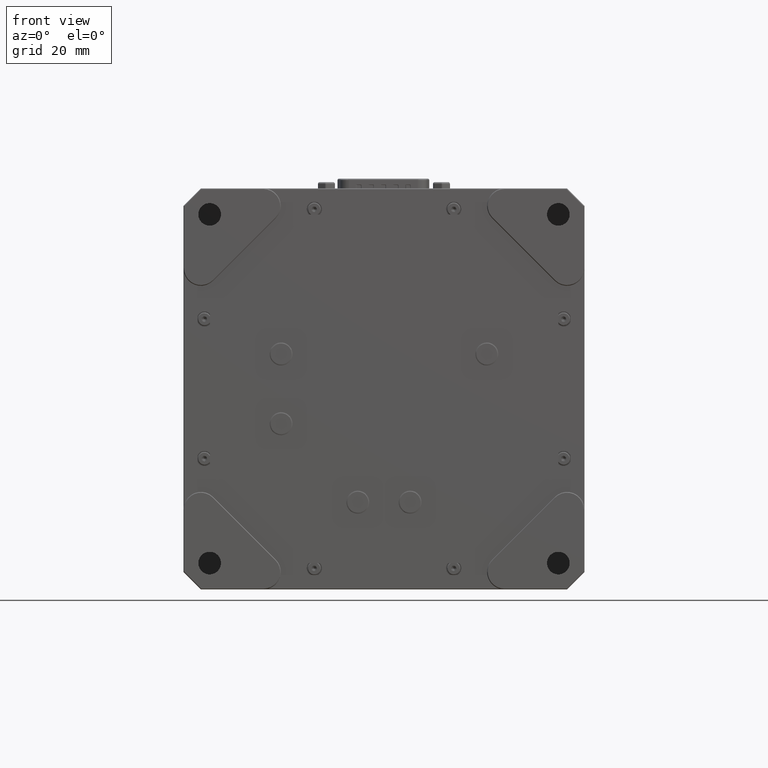
[diagram: clean part render]
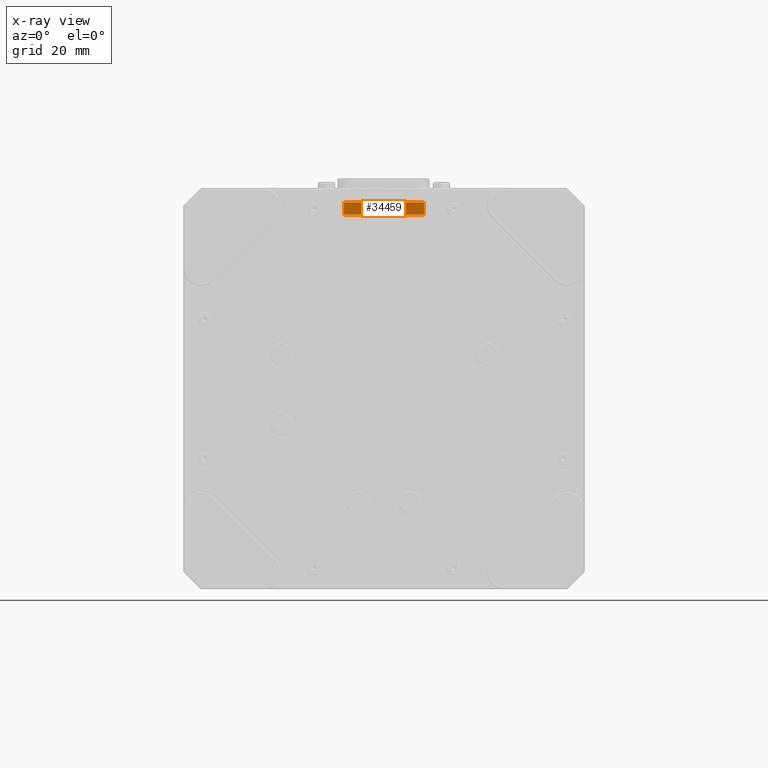
[diagram: x-ray — body ghosted, one internal face saturated and labeled with its STEP entity id]
A machine part, front view, then the same camera in x-ray: the body is ghosted and one INTERNAL B-rep face — a face not visible from any outside direction — is saturated and labeled: STEP entity #34459.
In plain terms, the highlighted planar face has unit normal (0, -1, 0).
Its self-contained STEP definition (entity closure, byte-faithful):
#2359 = EDGE_CURVE ( 'NONE', #11295, #29450, #44100, .T. ) ;
#3860 = VERTEX_POINT ( 'NONE', #40209 ) ;
#4152 = CARTESIAN_POINT ( 'NONE',  ( -20.84356474556825134, 20.00000000000000000, -0.01603640313937215039 ) ) ;
#4837 = EDGE_CURVE ( 'NONE', #11295, #11322, #31520, .T. ) ;
#7411 = EDGE_CURVE ( 'NONE', #49219, #26989, #22803, .T. ) ;
#8711 = CARTESIAN_POINT ( 'NONE',  ( -42.47150464001565240, 20.00000000000000000, -3.500000000000144773 ) ) ;
#9530 = VECTOR ( 'NONE', #23880, 1000.000000000000000 ) ;
#9692 = PLANE ( 'NONE',  #19792 ) ;
#10802 = CARTESIAN_POINT ( 'NONE',  ( -19.47150464001559911, 20.00000000000000000, -10.00000000000000000 ) ) ;
#11207 = EDGE_CURVE ( 'NONE', #30489, #3860, #22545, .T. ) ;
#11295 = VERTEX_POINT ( 'NONE', #29956 ) ;
#11322 = VERTEX_POINT ( 'NONE', #8711 ) ;
#12579 = CARTESIAN_POINT ( 'NONE',  ( -20.35735581590648380, 20.00000000000001421, -0.005345467727180253092 ) ) ;
#12912 = DIRECTION ( 'NONE',  ( 1.000000000000000000, 0.000000000000000000, -4.170576607243029879E-16 ) ) ;
#14628 = DIRECTION ( 'NONE',  ( -1.176712999434643914E-31, 2.262980913479740076E-16, 1.000000000000000000 ) ) ;
#15422 = CARTESIAN_POINT ( 'NONE',  ( -20.60046028073737290, 20.00000000000001421, -0.01069093543326973816 ) ) ;
#18121 = DIRECTION ( 'NONE',  ( 0.000000000000000000, -2.262980913479740076E-16, -1.000000000000000000 ) ) ;
#19602 = ORIENTED_EDGE ( 'NONE', *, *, #29508, .T. ) ;
#19792 = AXIS2_PLACEMENT_3D ( 'NONE', #38045, #37042, #18121 ) ;
#19930 = CARTESIAN_POINT ( 'NONE',  ( -41.41944453446304664, 20.00000000000000000, -0.01603640313937845091 ) ) ;
#19970 = CARTESIAN_POINT ( 'NONE',  ( -42.47150464001560266, 20.00000000000000000, -0.01603640313937654965 ) ) ;
#20329 = CARTESIAN_POINT ( 'NONE',  ( -39.07253958404520233, 20.00000000000000000, -6.803448068453639449E-15 ) ) ;
#21257 = CARTESIAN_POINT ( 'NONE',  ( -42.47150464001560266, 20.00000000000000000, -3.500000000000115019 ) ) ;
#21438 = EDGE_CURVE ( 'NONE', #49219, #49028, #42723, .T. ) ;
#21890 = VECTOR ( 'NONE', #12912, 1000.000000000000000 ) ;
#22545 = LINE ( 'NONE', #10802, #47392 ) ;
#22803 = LINE ( 'NONE', #19970, #40721 ) ;
#23165 = EDGE_LOOP ( 'NONE', ( #34492, #33306, #45938, #19602, #29903, #28390, #30027, #24973 ) ) ;
#23398 = VECTOR ( 'NONE', #47344, 1000.000000000000000 ) ;
#23880 = DIRECTION ( 'NONE',  ( 1.176712999434643914E-31, -2.262980913479740076E-16, -1.000000000000000000 ) ) ;
#24931 = CARTESIAN_POINT ( 'NONE',  ( -39.07253958404520233, 20.00000000690500102, -6.803448070382529791E-15 ) ) ;
#24973 = ORIENTED_EDGE ( 'NONE', *, *, #2359, .T. ) ;
#26989 = VERTEX_POINT ( 'NONE', #39043 ) ;
#28390 = ORIENTED_EDGE ( 'NONE', *, *, #39093, .F. ) ;
#28617 = FACE_OUTER_BOUND ( 'NONE', #23165, .T. ) ;
#29450 = VERTEX_POINT ( 'NONE', #44369 ) ;
#29508 = EDGE_CURVE ( 'NONE', #49028, #3860, #48452, .T. ) ;
#29903 = ORIENTED_EDGE ( 'NONE', *, *, #11207, .F. ) ;
#29956 = CARTESIAN_POINT ( 'NONE',  ( -42.47150464001560266, 20.00000000000000000, -4.966726120094590000E-15 ) ) ;
#30027 = ORIENTED_EDGE ( 'NONE', *, *, #4837, .F. ) ;
#30489 = VERTEX_POINT ( 'NONE', #45725 ) ;
#31520 = LINE ( 'NONE', #35123, #9530 ) ;
#33306 = ORIENTED_EDGE ( 'NONE', *, *, #7411, .F. ) ;
#33369 = VECTOR ( 'NONE', #40517, 1000.000000000000000 ) ;
#34459 = ADVANCED_FACE ( 'NONE', ( #28617 ), #9692, .F. ) ;
#34492 = ORIENTED_EDGE ( 'NONE', *, *, #48228, .T. ) ;
#34836 = CARTESIAN_POINT ( 'NONE',  ( -20.11425135107565154, 20.00000000552405055, -2.110116182777070080E-11 ) ) ;
#35123 = CARTESIAN_POINT ( 'NONE',  ( -42.47150464001560266, 20.00000000000000000, -10.00000000000000000 ) ) ;
#35837 = LINE ( 'NONE', #21257, #23398 ) ;
#37042 = DIRECTION ( 'NONE',  ( 5.199836164880569815E-16, -1.000000000000000000, 2.262980913479740076E-16 ) ) ;
#38045 = CARTESIAN_POINT ( 'NONE',  ( -42.47150464001560266, 20.00000000000000000, -10.00000000000000000 ) ) ;
#38390 = DIRECTION ( 'NONE',  ( -1.000000000000000000, -5.199836164880569815E-16, 0.000000000000000000 ) ) ;
#38912 = CARTESIAN_POINT ( 'NONE',  ( -20.84356474556825134, 20.00000000000000000, -0.01603640313937215039 ) ) ;
#39043 = CARTESIAN_POINT ( 'NONE',  ( -41.41944453446304664, 20.00000000000000000, -0.01603640313937845091 ) ) ;
#39093 = EDGE_CURVE ( 'NONE', #11322, #30489, #35837, .T. ) ;
#40209 = CARTESIAN_POINT ( 'NONE',  ( -19.47150464001559911, 20.00000000345249873, -1.532963867038759871E-14 ) ) ;
#40517 = DIRECTION ( 'NONE',  ( 1.000000000000000000, 0.000000000000000000, -4.170576607243029879E-16 ) ) ;
#40721 = VECTOR ( 'NONE', #38390, 1000.000000000000000 ) ;
#42723 = B_SPLINE_CURVE_WITH_KNOTS ( 'NONE', 3,
 ( #4152, #15422, #12579, #50432 ),
 .UNSPECIFIED., .F., .F.,
 ( 4, 4 ),
 ( 0.000000000000000000, 1.000000000000000000 ),
 .UNSPECIFIED. ) ;
#43733 = B_SPLINE_CURVE_WITH_KNOTS ( 'NONE', 3,
 ( #50366, #46534, #46275, #19930 ),
 .UNSPECIFIED., .F., .F.,
 ( 4, 4 ),
 ( 0.000000000000000000, 1.000000000000000000 ),
 .UNSPECIFIED. ) ;
#44100 = LINE ( 'NONE', #20329, #21890 ) ;
#44369 = CARTESIAN_POINT ( 'NONE',  ( -42.14902023246944651, 19.99999990436064934, -8.231892378611459758E-15 ) ) ;
#45725 = CARTESIAN_POINT ( 'NONE',  ( -19.47150464001559911, 20.00000000000000000, -3.500000000000115019 ) ) ;
#45938 = ORIENTED_EDGE ( 'NONE', *, *, #21438, .T. ) ;
#46275 = CARTESIAN_POINT ( 'NONE',  ( -41.66263643379850379, 20.00000000000000355, -0.01069093542624642221 ) ) ;
#46534 = CARTESIAN_POINT ( 'NONE',  ( -41.90582833313397515, 20.00000000000000355, -0.005345467713123210236 ) ) ;
#47344 = DIRECTION ( 'NONE',  ( 1.000000000000000000, 5.199836164880569815E-16, 0.000000000000000000 ) ) ;
#47392 = VECTOR ( 'NONE', #14628, 1000.000000000000000 ) ;
#48228 = EDGE_CURVE ( 'NONE', #29450, #26989, #43733, .T. ) ;
#48452 = LINE ( 'NONE', #24931, #33369 ) ;
#49028 = VERTEX_POINT ( 'NONE', #34836 ) ;
#49219 = VERTEX_POINT ( 'NONE', #38912 ) ;
#50366 = CARTESIAN_POINT ( 'NONE',  ( -42.14902023246944651, 19.99999990436064934, -8.231892378611459758E-15 ) ) ;
#50432 = CARTESIAN_POINT ( 'NONE',  ( -20.11425135107565154, 20.00000000552405055, -2.110116182777070080E-11 ) ) ;